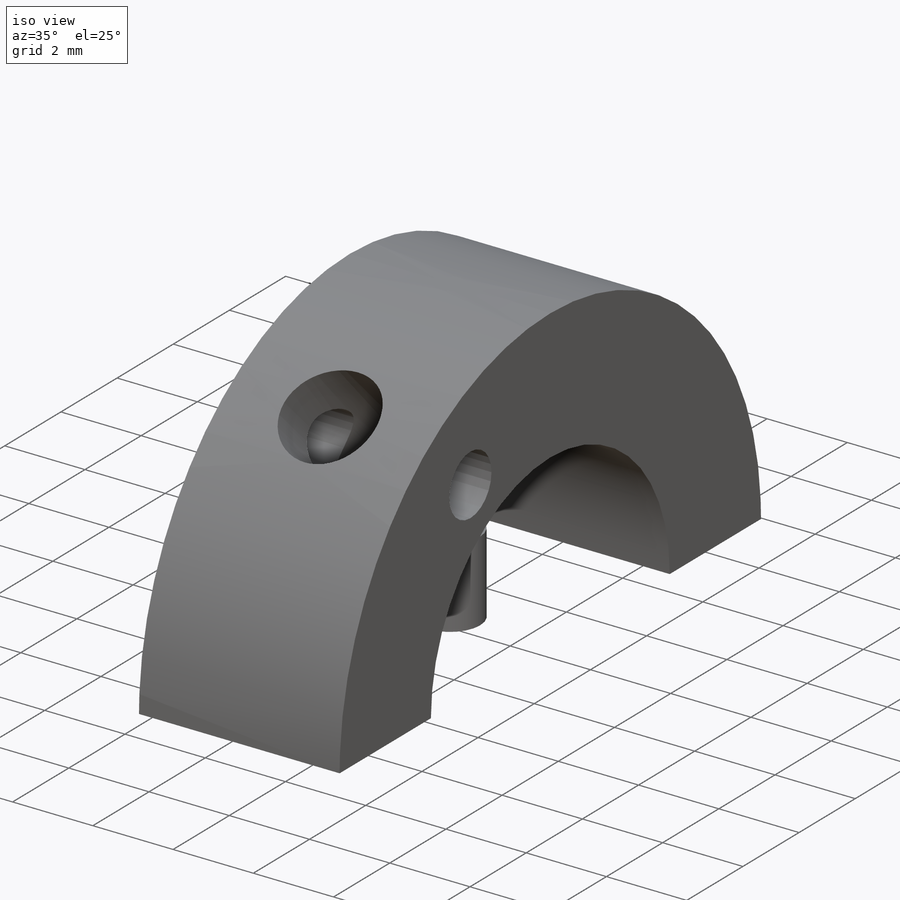
[diagram: iso view]
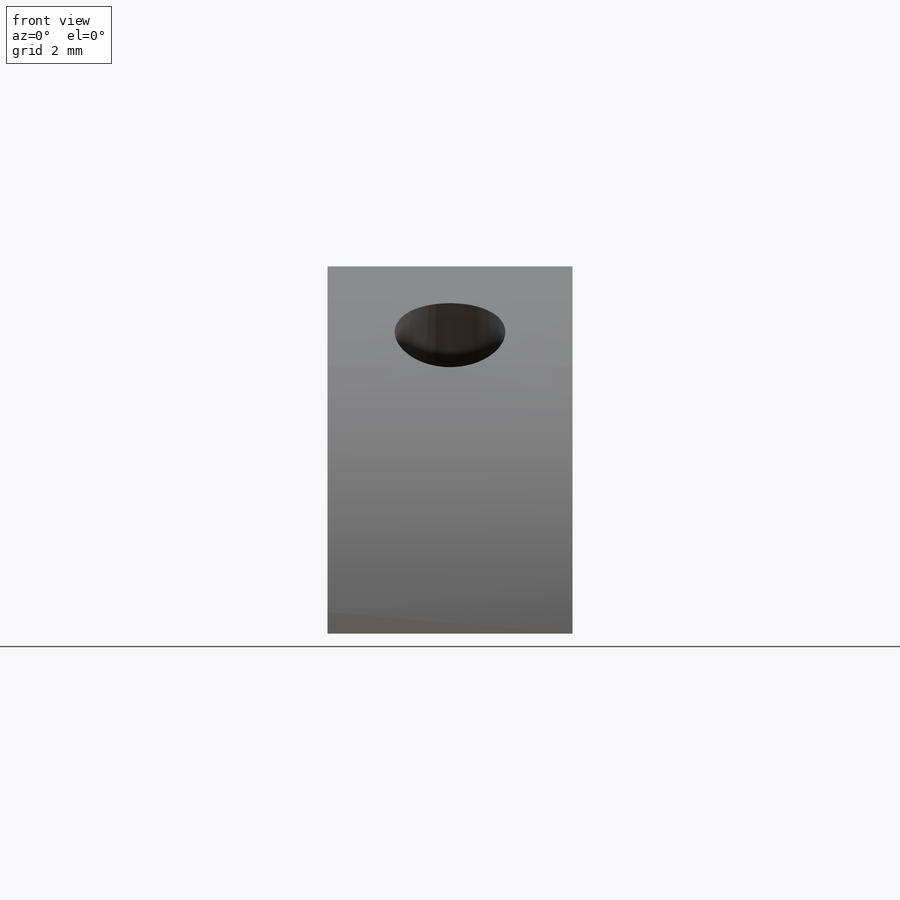
[diagram: front view]
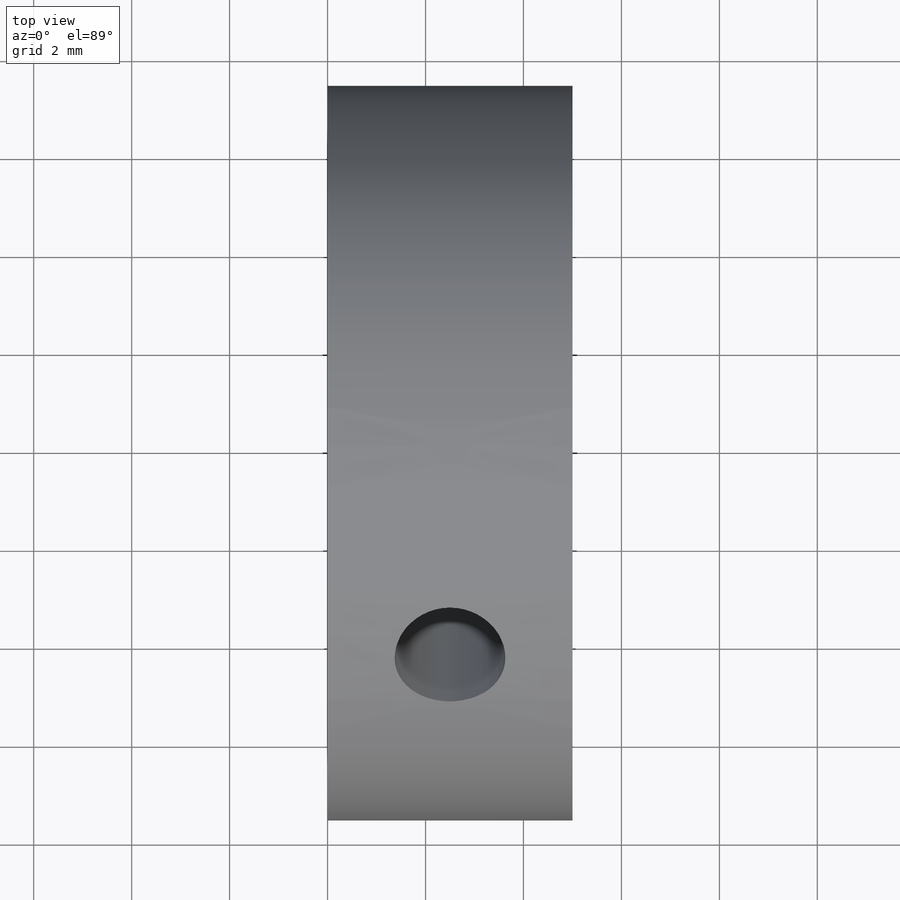
[diagram: top view]
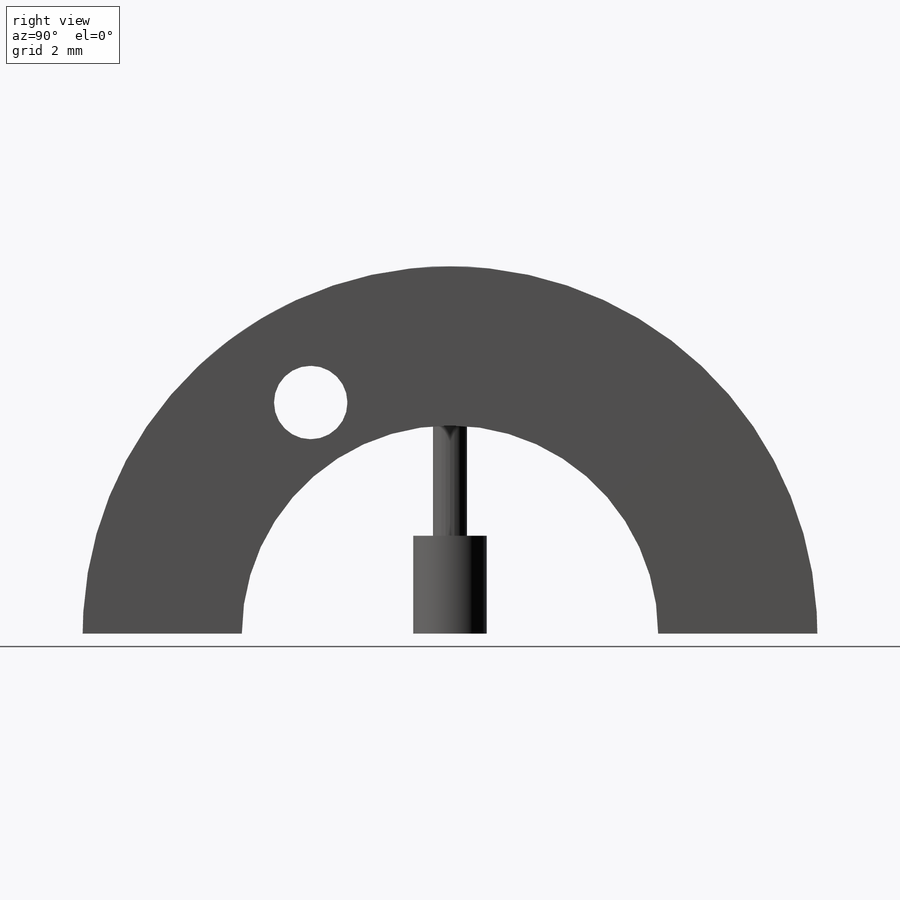
[diagram: right view]
SOLIDWORKS PART (.sldprt)
format: sldprt  version: not decoded by parser v0  size: 222,208 bytes
history: native  units: mm
features: sketch x5, extrude x3, plane x2, cut_extrude x2, material x1 (+13 scaffold rows collapsed)
feature tree (26):
  scaffold x13  (default folders/planes/origin — collapsed)
  material  "Material <not specified>"
  sketch  "Sketch2"  dims[c1.D1=8.5mm c1.D2=15.0mm c1.D3=4.5mm c1.D5=1.5mm c2.D2=~9.426078mm c2.D3=~2.71297mm c2.D4=5.5mm c2.D6=~17.061052mm c3.D6=45.0deg]
  plane  "Plane1"
  sketch  "Sketch3"
  extrude  "Boss-Extrude1"  Depth=5mm
  sketch  "Sketch4"  dims[D1=~0.487754mm]
  extrude  "Boss-Extrude2"  [1 undecoded]
  sketch  "Sketch5"  dims[D1=1.5mm]
  extrude  "Boss-Extrude3"  Depth=2mm
  cut_extrude  "Cut-Extrude1"  [1 undecoded]
  plane  "Plane2"
  sketch  "Sketch6"  dims[D1=2.2606mm D2=~5.011585mm]
  cut_extrude  "Cut-Extrude2"  Depth=4mm
decode coverage: 7 of 10 modeling features carry decoded parameters
note: ~ marks probable driven/reference dimensions
note: 2 parameter values undecoded
note: suppression state not decoded; provenance and decode notes live in map.json
